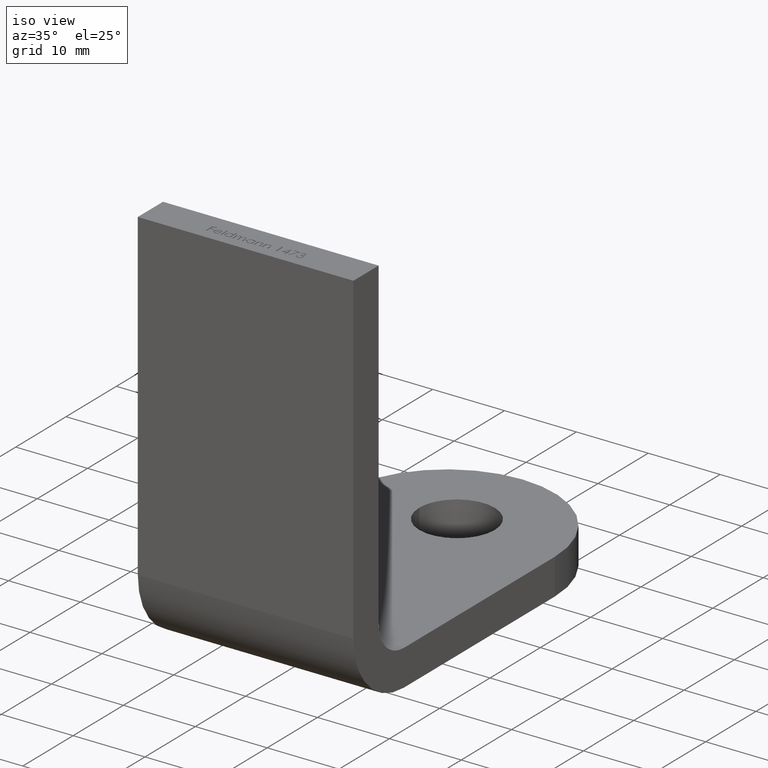
[diagram: clean part render]
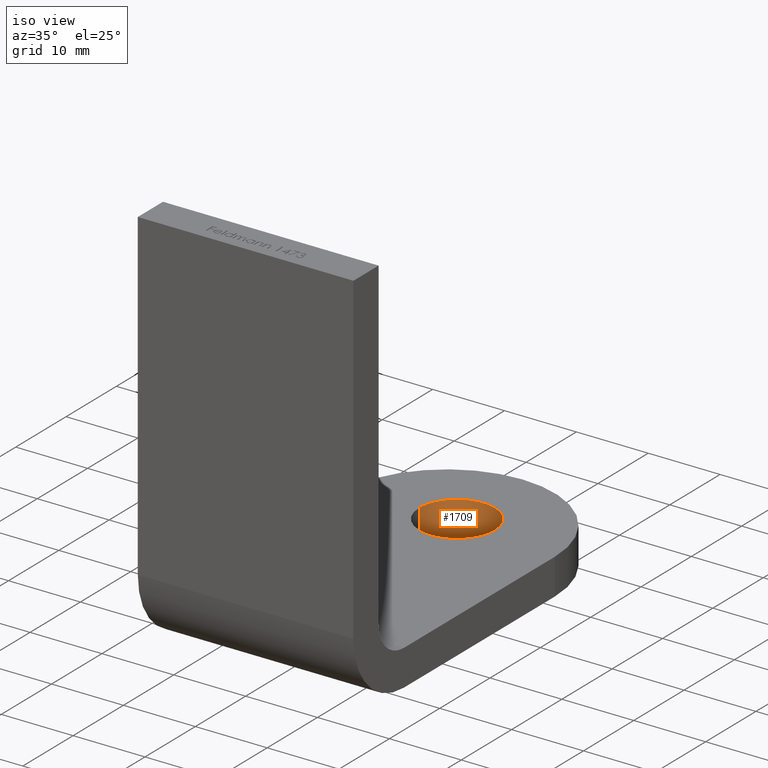
[diagram: same view with one face highlighted and labeled with its STEP entity id]
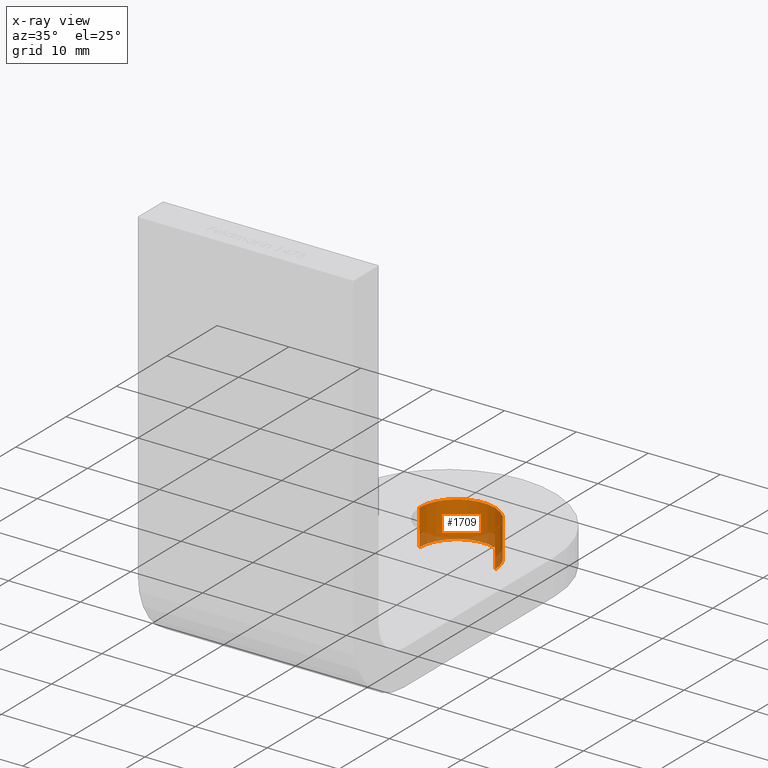
[diagram: x-ray of the same camera — body ghosted, the highlighted face saturated]
A machine part, iso view. The second image highlights one B-rep face of the part: STEP entity #1709.
The next image is the same camera in x-ray: the body ghosted, the highlighted face saturated — about 16% of this face is hidden behind the body in this view.
In plain terms, the highlighted cylindrical surface (partial cylindrical patch) has radius 5.25 mm, axis along (-0, -0, 1).
Its self-contained STEP definition (entity closure, byte-faithful):
#285 = DIRECTION ( 'NONE',  ( -0.0000000000000000000, -0.0000000000000000000, 1.000000000000000000 ) ) ;
#1128 = AXIS2_PLACEMENT_3D ( 'NONE', #1336, #1977, #7930 ) ;
#1336 = CARTESIAN_POINT ( 'NONE',  ( 0.0000000000000000000, 42.00000000000000000, -50.00000000000000000 ) ) ;
#1656 = FACE_OUTER_BOUND ( 'NONE', #5648, .T. ) ;
#1709 = ADVANCED_FACE ( 'NONE', ( #1656 ), #7639, .F. ) ;
#1815 = ORIENTED_EDGE ( 'NONE', *, *, #5610, .F. ) ;
#1896 = VECTOR ( 'NONE', #4874, 1000.000000000000000 ) ;
#1977 = DIRECTION ( 'NONE',  ( 0.0000000000000000000, 0.0000000000000000000, 1.000000000000000000 ) ) ;
#2203 = CARTESIAN_POINT ( 'NONE',  ( 5.249999999999998200, 42.00000000000000000, -80.00000000000000000 ) ) ;
#2246 = ORIENTED_EDGE ( 'NONE', *, *, #8308, .T. ) ;
#2256 = AXIS2_PLACEMENT_3D ( 'NONE', #6253, #3635, #3004 ) ;
#2347 = LINE ( 'NONE', #4143, #7711 ) ;
#2553 = ORIENTED_EDGE ( 'NONE', *, *, #3303, .F. ) ;
#2672 = VERTEX_POINT ( 'NONE', #5839 ) ;
#3004 = DIRECTION ( 'NONE',  ( 0.0000000000000000000, -1.000000000000000000, 0.0000000000000000000 ) ) ;
#3063 = DIRECTION ( 'NONE',  ( -0.0000000000000000000, -0.0000000000000000000, 1.000000000000000000 ) ) ;
#3303 = EDGE_CURVE ( 'NONE', #2672, #7066, #2347, .T. ) ;
#3516 = CIRCLE ( 'NONE', #1128, 5.249999999999998200 ) ;
#3635 = DIRECTION ( 'NONE',  ( -0.0000000000000000000, 1.541976423090495400E-016, 1.000000000000000000 ) ) ;
#3797 = CARTESIAN_POINT ( 'NONE',  ( 5.249999999999998200, 42.00000000000000000, -55.00000000000000000 ) ) ;
#4143 = CARTESIAN_POINT ( 'NONE',  ( -5.249999999999998200, 42.00000000000000000, -80.00000000000000000 ) ) ;
#4352 = CARTESIAN_POINT ( 'NONE',  ( 0.0000000000000000000, 42.00000000000000000, -80.00000000000000000 ) ) ;
#4486 = VERTEX_POINT ( 'NONE', #7010 ) ;
#4538 = CIRCLE ( 'NONE', #2256, 5.249999999999997300 ) ;
#4874 = DIRECTION ( 'NONE',  ( -0.0000000000000000000, -0.0000000000000000000, 1.000000000000000000 ) ) ;
#4945 = VERTEX_POINT ( 'NONE', #3797 ) ;
#5021 = DIRECTION ( 'NONE',  ( 1.000000000000000000, 0.0000000000000000000, 0.0000000000000000000 ) ) ;
#5137 = ORIENTED_EDGE ( 'NONE', *, *, #6436, .T. ) ;
#5365 = LINE ( 'NONE', #2203, #1896 ) ;
#5467 = AXIS2_PLACEMENT_3D ( 'NONE', #4352, #3063, #5021 ) ;
#5479 = CARTESIAN_POINT ( 'NONE',  ( -5.249999999999998200, 42.00000000000000000, -50.00000000000000000 ) ) ;
#5610 = EDGE_CURVE ( 'NONE', #4945, #2672, #4538, .T. ) ;
#5648 = EDGE_LOOP ( 'NONE', ( #2553, #1815, #5137, #2246 ) ) ;
#5839 = CARTESIAN_POINT ( 'NONE',  ( -5.249999999999998200, 42.00000000000000000, -55.00000000000000000 ) ) ;
#6253 = CARTESIAN_POINT ( 'NONE',  ( 0.0000000000000000000, 42.00000000000000000, -55.00000000000000000 ) ) ;
#6436 = EDGE_CURVE ( 'NONE', #4945, #4486, #5365, .T. ) ;
#7010 = CARTESIAN_POINT ( 'NONE',  ( 5.249999999999998200, 42.00000000000000000, -50.00000000000000000 ) ) ;
#7066 = VERTEX_POINT ( 'NONE', #5479 ) ;
#7639 = CYLINDRICAL_SURFACE ( 'NONE', #5467, 5.249999999999998200 ) ;
#7711 = VECTOR ( 'NONE', #285, 1000.000000000000000 ) ;
#7930 = DIRECTION ( 'NONE',  ( 1.000000000000000000, 0.0000000000000000000, 0.0000000000000000000 ) ) ;
#8308 = EDGE_CURVE ( 'NONE', #4486, #7066, #3516, .T. ) ;